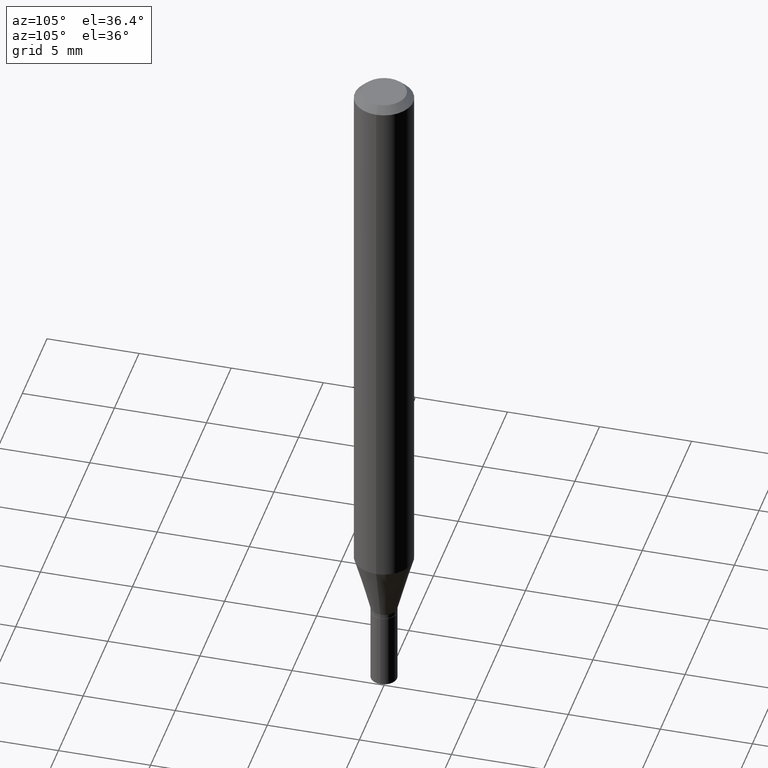
[diagram: clean part render]
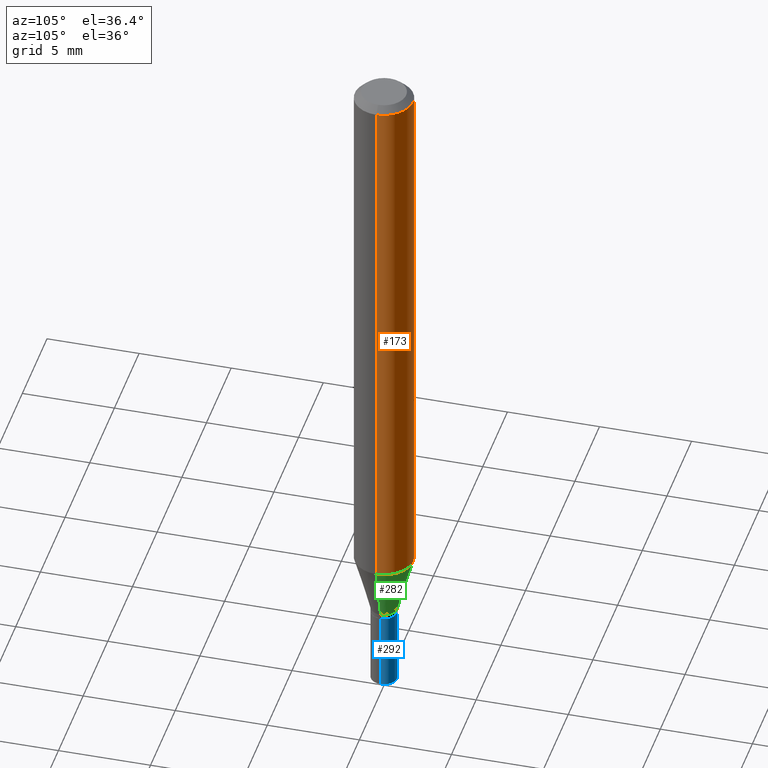
[diagram: same view with three faces highlighted in distinct colors, each labeled with its STEP entity id]
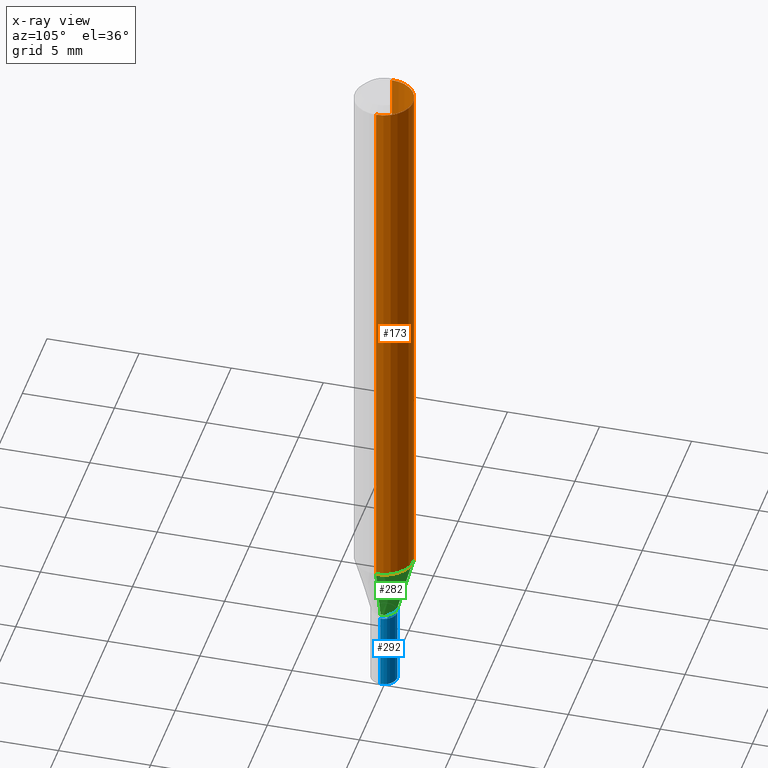
[diagram: x-ray of the same camera — body ghosted, the three highlighted faces saturated]
A machine part, auxiliary view with three faces highlighted in distinct colors.
The next image is the same camera in x-ray (body ghosted, the three faces saturated) — at least one of them is partly hidden behind the body in this view.
Their STEP definitions:

[orange] entity #173 — the highlighted cylindrical surface (edge-blend (fillet) strip) has radius 1.5875 mm, axis along (-0, 0, 1).
#8 = AXIS2_PLACEMENT_3D ( 'NONE', #466, #148, #104 ) ;
#31 = CIRCLE ( 'NONE', #8, 0.06250000000000000000 ) ;
#50 = AXIS2_PLACEMENT_3D ( 'NONE', #297, #186, #327 ) ;
#56 = CARTESIAN_POINT ( 'NONE',  ( 0.06250000000000000000, -4.602625188922709150E-15, -1.193244247138873781 ) ) ;
#57 = VERTEX_POINT ( 'NONE', #112 ) ;
#61 = EDGE_LOOP ( 'NONE', ( #426, #370, #353, #136 ) ) ;
#62 = EDGE_CURVE ( 'NONE', #385, #207, #31, .T. ) ;
#69 = CARTESIAN_POINT ( 'NONE',  ( 0.000000000000000000, 0.000000000000000000, 0.000000000000000000 ) ) ;
#74 = AXIS2_PLACEMENT_3D ( 'NONE', #69, #218, #341 ) ;
#98 = EDGE_CURVE ( 'NONE', #57, #457, #254, .T. ) ;
#102 = CARTESIAN_POINT ( 'NONE',  ( 0.06250000000000000000, -4.364351673553916694E-16, 3.047610484872459871E-30 ) ) ;
#104 = DIRECTION ( 'NONE',  ( 1.000000000000000000, -6.982962677686270655E-15, 0.000000000000000000 ) ) ;
#112 = CARTESIAN_POINT ( 'NONE',  ( 0.06250000000000000000, -4.888073874380388472E-16, -0.01499999999999999944 ) ) ;
#119 = CARTESIAN_POINT ( 'NONE',  ( -0.06250000000000000000, -3.722100811717253287E-15, -1.193244247138873781 ) ) ;
#135 = CARTESIAN_POINT ( 'NONE',  ( -0.06250000000000000000, 4.440892098500626162E-16, -3.074334431409316114E-30 ) ) ;
#136 = ORIENTED_EDGE ( 'NONE', *, *, #163, .F. ) ;
#148 = DIRECTION ( 'NONE',  ( -2.445468806185136597E-29, 3.491481338843145583E-15, 1.000000000000000000 ) ) ;
#163 = EDGE_CURVE ( 'NONE', #385, #57, #428, .T. ) ;
#173 = ADVANCED_FACE ( 'NONE', ( #364 ), #398, .T. ) ;
#186 = DIRECTION ( 'NONE',  ( -2.445468806185136597E-29, 3.491481338843145583E-15, 1.000000000000000000 ) ) ;
#188 = VECTOR ( 'NONE', #277, 39.37007874015748143 ) ;
#207 = VERTEX_POINT ( 'NONE', #119 ) ;
#218 = DIRECTION ( 'NONE',  ( -2.445468806185136597E-29, 3.491481338843145583E-15, 1.000000000000000000 ) ) ;
#252 = DIRECTION ( 'NONE',  ( -2.445468806185136877E-29, 3.491481338843145188E-15, 1.000000000000000000 ) ) ;
#254 = CIRCLE ( 'NONE', #50, 0.06250000000000000000 ) ;
#277 = DIRECTION ( 'NONE',  ( -2.445468806185136877E-29, 3.491481338843145188E-15, 1.000000000000000000 ) ) ;
#297 = CARTESIAN_POINT ( 'NONE',  ( 3.668203209277705088E-31, -5.237222008264718399E-17, -0.01499999999999999944 ) ) ;
#311 = LINE ( 'NONE', #135, #188 ) ;
#327 = DIRECTION ( 'NONE',  ( 1.000000000000000000, -6.982962677686266711E-15, 0.000000000000000000 ) ) ;
#341 = DIRECTION ( 'NONE',  ( 1.000000000000000000, -6.982962677686266711E-15, 4.876176775795935793E-29 ) ) ;
#353 = ORIENTED_EDGE ( 'NONE', *, *, #98, .F. ) ;
#364 = FACE_OUTER_BOUND ( 'NONE', #61, .T. ) ;
#370 = ORIENTED_EDGE ( 'NONE', *, *, #414, .T. ) ;
#385 = VERTEX_POINT ( 'NONE', #56 ) ;
#398 = CYLINDRICAL_SURFACE ( 'NONE', #74, 0.06250000000000000000 ) ;
#408 = VECTOR ( 'NONE', #252, 39.37007874015748143 ) ;
#414 = EDGE_CURVE ( 'NONE', #207, #457, #311, .T. ) ;
#426 = ORIENTED_EDGE ( 'NONE', *, *, #62, .T. ) ;
#428 = LINE ( 'NONE', #102, #408 ) ;
#453 = CARTESIAN_POINT ( 'NONE',  ( -0.06250000000000000000, -1.665191910974919269E-15, -0.01499999999999999944 ) ) ;
#457 = VERTEX_POINT ( 'NONE', #453 ) ;
#466 = CARTESIAN_POINT ( 'NONE',  ( 2.918041584537983972E-29, -4.166190021567316692E-15, -1.193244247138873781 ) ) ;

[blue] entity #292 — the highlighted cylindrical surface (edge-blend (fillet) strip) has radius 0.7112 mm, axis along (-0, 0, 1).
#24 = VERTEX_POINT ( 'NONE', #226 ) ;
#25 = DIRECTION ( 'NONE',  ( -2.445468806185136597E-29, 3.491481338843145583E-15, 1.000000000000000000 ) ) ;
#45 = DIRECTION ( 'NONE',  ( -2.445468806185136877E-29, 3.491481338843145188E-15, 1.000000000000000000 ) ) ;
#47 = CARTESIAN_POINT ( 'NONE',  ( 0.02800000000000000405, -1.955229549752154995E-16, 1.365329497222862141E-30 ) ) ;
#76 = VECTOR ( 'NONE', #384, 39.37007874015748143 ) ;
#83 = CARTESIAN_POINT ( 'NONE',  ( -0.02800000000000000405, 1.989519660128280808E-16, -1.377301825271373721E-30 ) ) ;
#86 = LINE ( 'NONE', #83, #208 ) ;
#88 = EDGE_LOOP ( 'NONE', ( #280, #283, #96, #204 ) ) ;
#96 = ORIENTED_EDGE ( 'NONE', *, *, #422, .F. ) ;
#115 = CYLINDRICAL_SURFACE ( 'NONE', #146, 0.02800000000000000405 ) ;
#117 = FACE_OUTER_BOUND ( 'NONE', #88, .T. ) ;
#120 = AXIS2_PLACEMENT_3D ( 'NONE', #206, #25, #349 ) ;
#146 = AXIS2_PLACEMENT_3D ( 'NONE', #337, #266, #196 ) ;
#161 = CIRCLE ( 'NONE', #452, 0.02800000000000000405 ) ;
#196 = DIRECTION ( 'NONE',  ( 1.000000000000000000, -6.982962677686266711E-15, 4.876176775795935232E-29 ) ) ;
#199 = DIRECTION ( 'NONE',  ( -2.445468806185136597E-29, 3.491481338843145583E-15, 1.000000000000000000 ) ) ;
#202 = EDGE_CURVE ( 'NONE', #362, #24, #86, .T. ) ;
#204 = ORIENTED_EDGE ( 'NONE', *, *, #309, .F. ) ;
#206 = CARTESIAN_POINT ( 'NONE',  ( 3.257364449838602072E-29, -4.650653143339070101E-15, -1.332000000000000073 ) ) ;
#208 = VECTOR ( 'NONE', #45, 39.37007874015748143 ) ;
#226 = CARTESIAN_POINT ( 'NONE',  ( -0.02800000000000000405, -4.744985609789067093E-15, -1.332000000000000073 ) ) ;
#246 = VERTEX_POINT ( 'NONE', #301 ) ;
#266 = DIRECTION ( 'NONE',  ( -2.445468806185136597E-29, 3.491481338843145583E-15, 1.000000000000000000 ) ) ;
#271 = VERTEX_POINT ( 'NONE', #342 ) ;
#280 = ORIENTED_EDGE ( 'NONE', *, *, #298, .T. ) ;
#283 = ORIENTED_EDGE ( 'NONE', *, *, #202, .T. ) ;
#292 = ADVANCED_FACE ( 'NONE', ( #117 ), #115, .T. ) ;
#298 = EDGE_CURVE ( 'NONE', #271, #362, #161, .T. ) ;
#301 = CARTESIAN_POINT ( 'NONE',  ( 0.02800000000000000405, -4.846176098314285600E-15, -1.332000000000000073 ) ) ;
#309 = EDGE_CURVE ( 'NONE', #271, #246, #375, .T. ) ;
#337 = CARTESIAN_POINT ( 'NONE',  ( 0.000000000000000000, 0.000000000000000000, 0.000000000000000000 ) ) ;
#342 = CARTESIAN_POINT ( 'NONE',  ( 0.02800000000000000405, -5.432744963239933676E-15, -1.500000000000000222 ) ) ;
#349 = DIRECTION ( 'NONE',  ( 1.000000000000000000, -6.982962677686262766E-15, 0.000000000000000000 ) ) ;
#361 = CIRCLE ( 'NONE', #120, 0.02800000000000000405 ) ;
#362 = VERTEX_POINT ( 'NONE', #456 ) ;
#375 = LINE ( 'NONE', #47, #76 ) ;
#384 = DIRECTION ( 'NONE',  ( -2.445468806185136877E-29, 3.491481338843145188E-15, 1.000000000000000000 ) ) ;
#407 = CARTESIAN_POINT ( 'NONE',  ( 3.668203209277704895E-29, -5.237222008264718177E-15, -1.500000000000000222 ) ) ;
#422 = EDGE_CURVE ( 'NONE', #246, #24, #361, .T. ) ;
#443 = DIRECTION ( 'NONE',  ( 1.000000000000000000, -6.982962677686262766E-15, 0.000000000000000000 ) ) ;
#452 = AXIS2_PLACEMENT_3D ( 'NONE', #407, #199, #443 ) ;
#456 = CARTESIAN_POINT ( 'NONE',  ( -0.02800000000000000405, -4.744985609789067093E-15, -1.500000000000000222 ) ) ;

[green] entity #282 — the highlighted conical surface has half-angle 15 deg.
#8 = AXIS2_PLACEMENT_3D ( 'NONE', #466, #148, #104 ) ;
#12 = ORIENTED_EDGE ( 'NONE', *, *, #455, .T. ) ;
#14 = CARTESIAN_POINT ( 'NONE',  ( 3.232909761776751088E-29, -4.615738329950638452E-15, -1.322000000000000064 ) ) ;
#27 = LINE ( 'NONE', #174, #387 ) ;
#31 = CIRCLE ( 'NONE', #8, 0.06250000000000000000 ) ;
#56 = CARTESIAN_POINT ( 'NONE',  ( 0.06250000000000000000, -4.602625188922709150E-15, -1.193244247138873781 ) ) ;
#62 = EDGE_CURVE ( 'NONE', #385, #207, #31, .T. ) ;
#82 = VECTOR ( 'NONE', #133, 39.37007874015747433 ) ;
#104 = DIRECTION ( 'NONE',  ( 1.000000000000000000, -6.982962677686270655E-15, 0.000000000000000000 ) ) ;
#119 = CARTESIAN_POINT ( 'NONE',  ( -0.06250000000000000000, -3.722100811717253287E-15, -1.193244247138873781 ) ) ;
#127 = ORIENTED_EDGE ( 'NONE', *, *, #310, .F. ) ;
#128 = CIRCLE ( 'NONE', #170, 0.02799999999999992079 ) ;
#133 = DIRECTION ( 'NONE',  ( 0.2588190451025213501, 1.565188264969621968E-15, 0.9659258262890682012 ) ) ;
#148 = DIRECTION ( 'NONE',  ( -2.445468806185136597E-29, 3.491481338843145583E-15, 1.000000000000000000 ) ) ;
#160 = DIRECTION ( 'NONE',  ( 1.000000000000000000, -6.982962677686283277E-15, 0.000000000000000000 ) ) ;
#170 = AXIS2_PLACEMENT_3D ( 'NONE', #236, #316, #171 ) ;
#171 = DIRECTION ( 'NONE',  ( 1.000000000000000000, -6.982962677686283277E-15, 0.000000000000000000 ) ) ;
#174 = CARTESIAN_POINT ( 'NONE',  ( -0.02799999999999992079, -4.416786363937811012E-15, -1.322000000000000064 ) ) ;
#192 = VERTEX_POINT ( 'NONE', #406 ) ;
#193 = FACE_OUTER_BOUND ( 'NONE', #459, .T. ) ;
#207 = VERTEX_POINT ( 'NONE', #119 ) ;
#212 = VERTEX_POINT ( 'NONE', #270 ) ;
#227 = DIRECTION ( 'NONE',  ( -2.445468806185136597E-29, 3.491481338843145583E-15, 1.000000000000000000 ) ) ;
#236 = CARTESIAN_POINT ( 'NONE',  ( 3.232909761776751088E-29, -4.615738329950638452E-15, -1.322000000000000064 ) ) ;
#270 = CARTESIAN_POINT ( 'NONE',  ( 0.02799999999999992079, -4.811261284925853951E-15, -1.322000000000000064 ) ) ;
#282 = ADVANCED_FACE ( 'NONE', ( #193 ), #359, .T. ) ;
#284 = CARTESIAN_POINT ( 'NONE',  ( 0.02799999999999992079, -4.811261284925853951E-15, -1.322000000000000064 ) ) ;
#286 = DIRECTION ( 'NONE',  ( -0.2588190451025213501, 5.211531920934551042E-15, 0.9659258262890682012 ) ) ;
#289 = AXIS2_PLACEMENT_3D ( 'NONE', #14, #227, #160 ) ;
#310 = EDGE_CURVE ( 'NONE', #212, #385, #449, .T. ) ;
#316 = DIRECTION ( 'NONE',  ( -2.445468806185136597E-29, 3.491481338843145583E-15, 1.000000000000000000 ) ) ;
#324 = ORIENTED_EDGE ( 'NONE', *, *, #444, .T. ) ;
#350 = ORIENTED_EDGE ( 'NONE', *, *, #62, .F. ) ;
#359 = CONICAL_SURFACE ( 'NONE', #289, 0.02799999999999992079, 0.2617993877991500740 ) ;
#385 = VERTEX_POINT ( 'NONE', #56 ) ;
#387 = VECTOR ( 'NONE', #286, 39.37007874015747433 ) ;
#406 = CARTESIAN_POINT ( 'NONE',  ( -0.02799999999999992079, -4.069443587827532544E-15, -1.322000000000000064 ) ) ;
#444 = EDGE_CURVE ( 'NONE', #192, #207, #27, .T. ) ;
#449 = LINE ( 'NONE', #284, #82 ) ;
#455 = EDGE_CURVE ( 'NONE', #212, #192, #128, .T. ) ;
#459 = EDGE_LOOP ( 'NONE', ( #12, #324, #350, #127 ) ) ;
#466 = CARTESIAN_POINT ( 'NONE',  ( 2.918041584537983972E-29, -4.166190021567316692E-15, -1.193244247138873781 ) ) ;